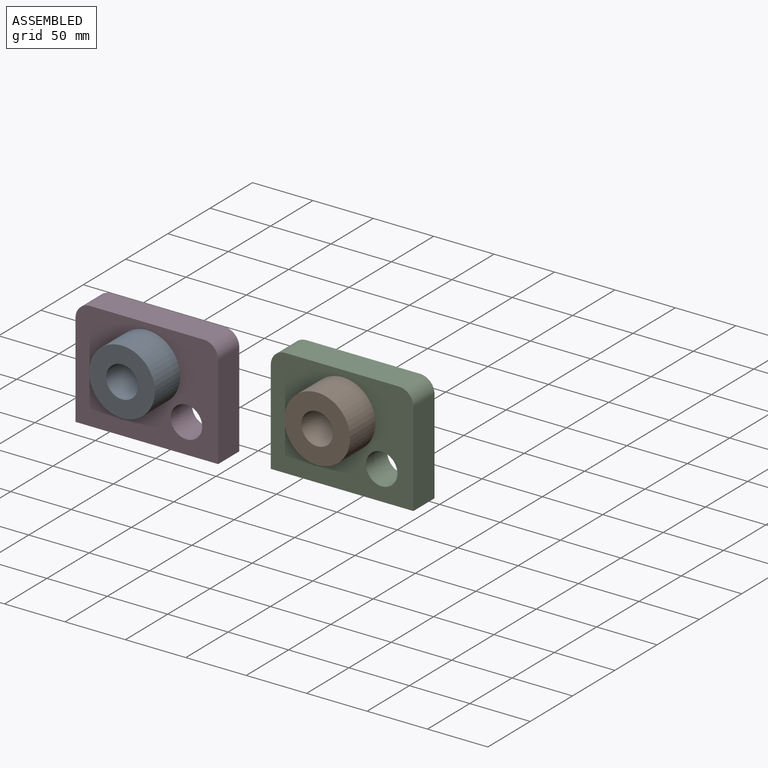
[diagram: assembled view]
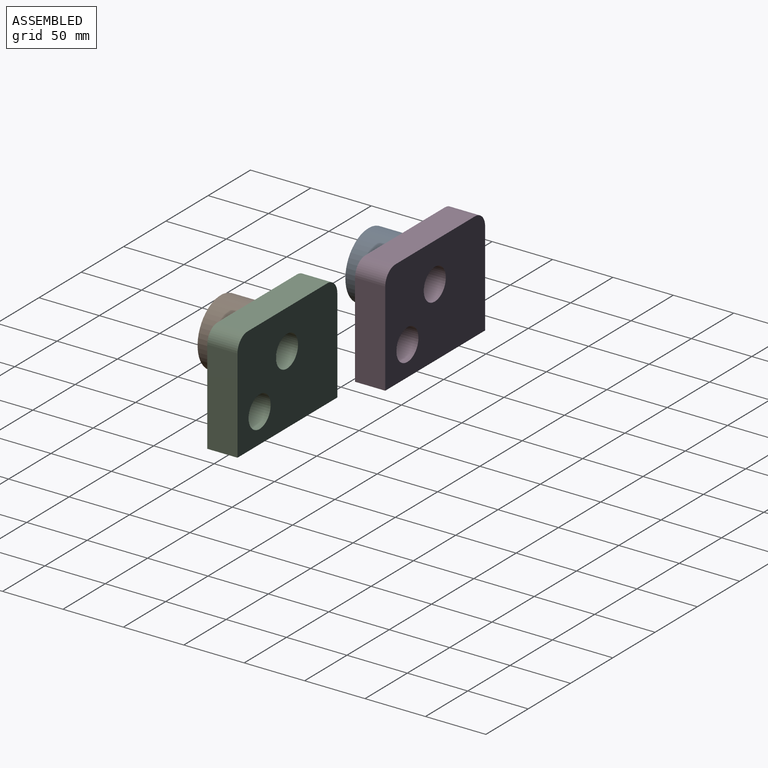
[diagram: assembled view, second angle]
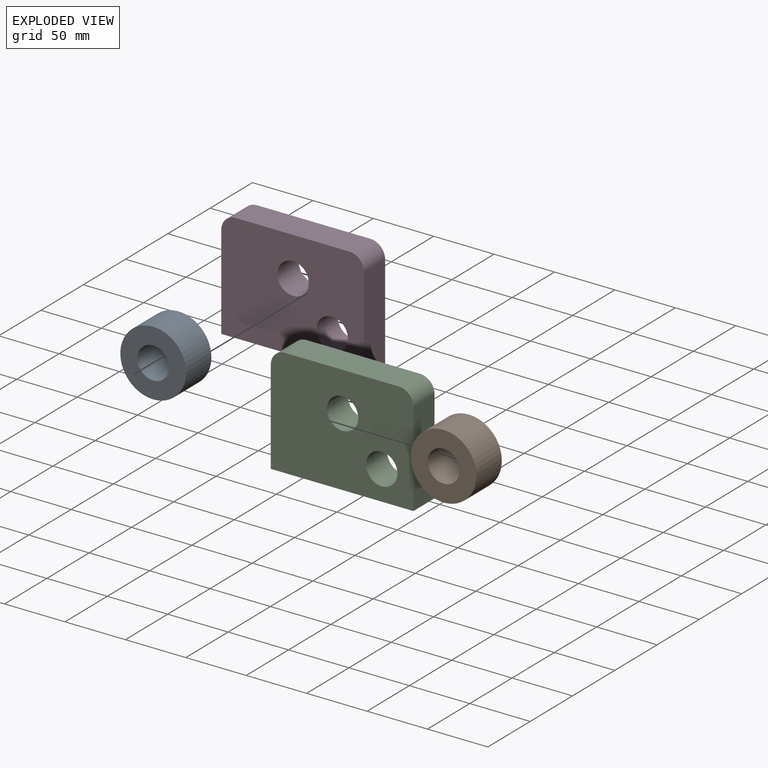
[diagram: exploded view]
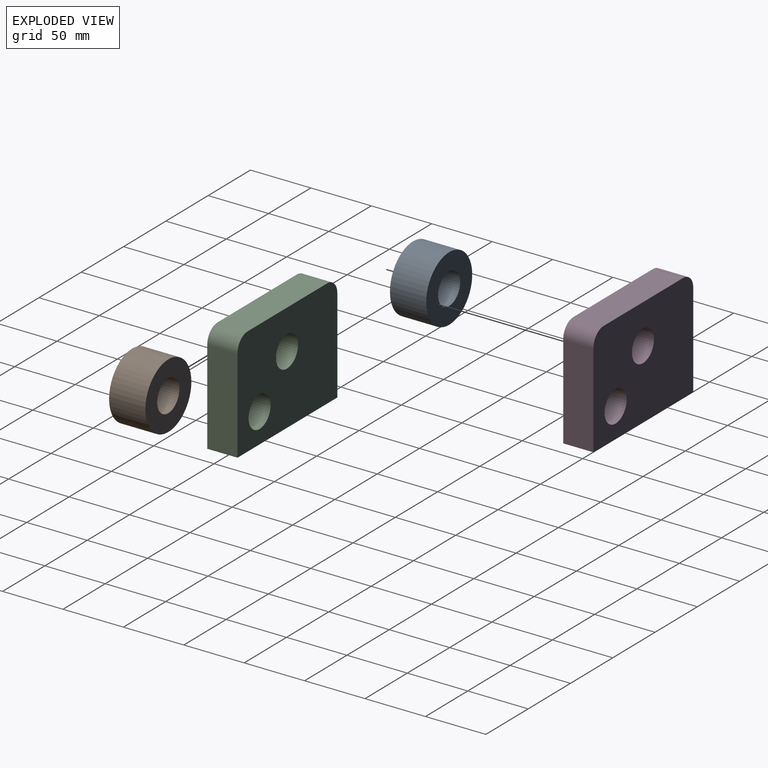
[diagram: exploded view, second angle]
ASSEMBLY  parts=4 mates=2
PART A: 4 faces, bbox 54.4x30x54.4 mm
  f0: cylinder r=27.19mm len=54.39mm, axis (0,1,0), area 5125.7mm2, adj f1,f3
  f1: plane 54.39x54.39mm, normal (0,1,0), area 1784.1mm2, adj f0,f2
  f2: cylinder r=13.1mm len=30mm, axis (0,-1,0), area 2468.8mm2, adj f1,f3
  f3: plane 54.39x54.39mm, normal (0,-1,0), area 1784.1mm2, adj f0,f2
PART B: same geometry as A
PART C: 10 faces, bbox 118x25x89.9 mm
  f0: plane 118.04x25mm, normal (0,0,-1), area 2951.1mm2, adj f1,f3,f4,f5
  f1: plane 77.94x25mm, normal (1,0,0), area 1948.5mm2, adj f0,f4,f5,f9
  f2: plane 94.04x25mm, normal (0,0,1), area 2351.1mm2, adj f4,f5,f8,f9
  f3: plane 77.94x25mm, normal (-1,0,0), area 1948.5mm2, adj f0,f4,f5,f8
  f4: plane 118.04x89.94mm, normal (0,-1,0), area 9493.1mm2, adj f0,f1,f2,f3,f6,f7,f8,f9
  f5: plane 118.04x89.94mm, normal (0,1,0), area 9493.1mm2, adj f0,f1,f2,f3,f6,f7,f8,f9
  f6: cylinder r=13mm len=26mm, axis (0,-1,0), area 2042mm2, adj f4,f5
  f7: cylinder r=13mm len=26mm, axis (0,-1,0), area 2042mm2, adj f4,f5
  f8: cylinder r=12mm len=25mm, axis (0,-1,0), area 471.2mm2, adj f2,f3,f4,f5
  f9: cylinder r=12mm len=25mm, axis (0,1,0), area 471.2mm2, adj f1,f2,f4,f5
PART D: same geometry as C
PLACE A rot(axis=(0.98,0,0.22),180deg) t=(69.35,-21.36,66.72)mm
PLACE B rot(axis=(0.98,0,-0.22),180deg) t=(259.34,-27.5,36.45)mm
PLACE C t=(76.9,-72.5,-21.74)mm fixed
PLACE D t=(-88.99,-66.36,-33.34)mm
MATE revolute A.f0 <-> D.f6  axis (0,1,0) through (37.07,8.64,20.28)mm
MATE revolute B.f0 <-> C.f6  axis (0,1,0) through (202.96,2.5,31.88)mm
